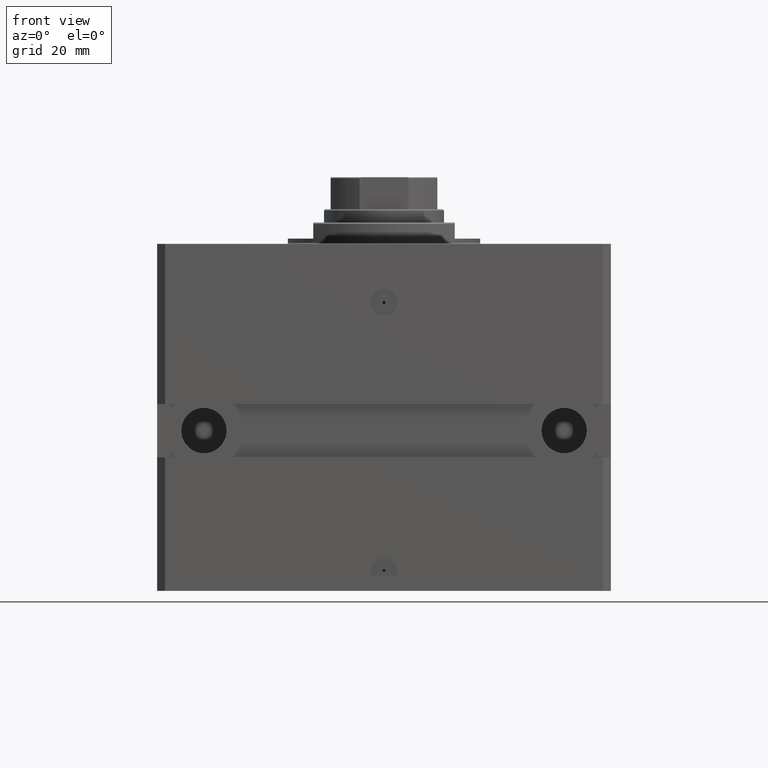
[diagram: clean part render]
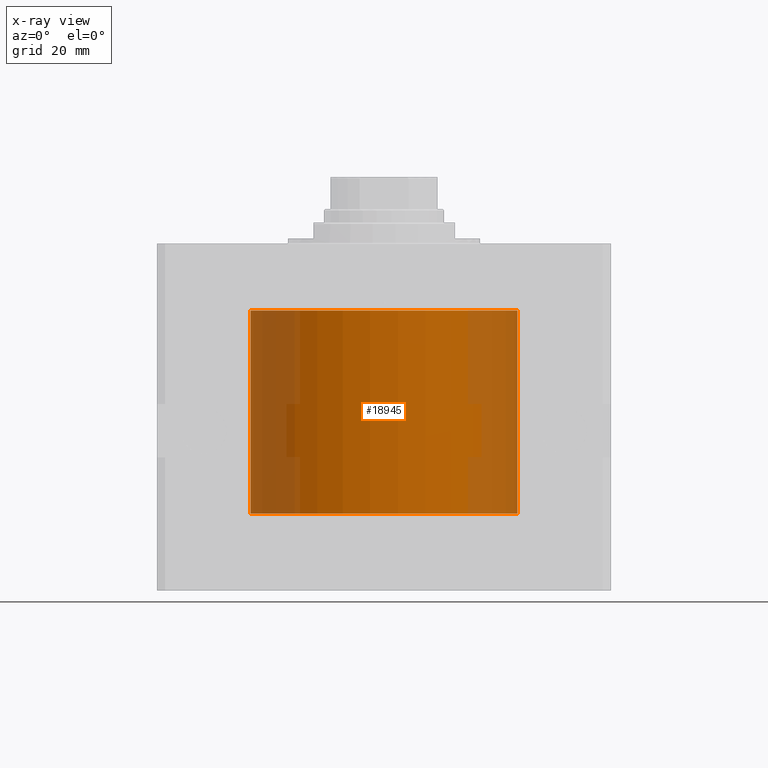
[diagram: x-ray — body ghosted, one internal face saturated and labeled with its STEP entity id]
A machine part, front view, then the same camera in x-ray: the body is ghosted and one INTERNAL B-rep face — a face not visible from any outside direction — is saturated and labeled: STEP entity #18945.
In plain terms, the highlighted cylindrical surface (partial cylindrical patch) has radius 50 mm, axis along (0, 0, 1).
Its self-contained STEP definition (entity closure, byte-faithful):
#1062 = LINE ( 'NONE', #42215, #24147 ) ;
#3898 = CIRCLE ( 'NONE', #27360, 50.00000000000000000 ) ;
#5566 = CARTESIAN_POINT ( 'NONE',  ( -50.00000000000000000, 6.123233995736764507E-15, -101.0999999999999943 ) ) ;
#6096 = VERTEX_POINT ( 'NONE', #11132 ) ;
#8206 = EDGE_CURVE ( 'NONE', #15691, #6096, #17080, .T. ) ;
#8247 = ORIENTED_EDGE ( 'NONE', *, *, #31020, .F. ) ;
#8670 = DIRECTION ( 'NONE',  ( -0.000000000000000000, -0.000000000000000000, 1.000000000000000000 ) ) ;
#10304 = ORIENTED_EDGE ( 'NONE', *, *, #36443, .T. ) ;
#11132 = CARTESIAN_POINT ( 'NONE',  ( -50.00000000000000000, 6.123233995736764507E-15, -24.99999999999999289 ) ) ;
#14686 = FACE_OUTER_BOUND ( 'NONE', #27583, .T. ) ;
#14825 = ORIENTED_EDGE ( 'NONE', *, *, #18593, .F. ) ;
#15691 = VERTEX_POINT ( 'NONE', #32630 ) ;
#15704 = DIRECTION ( 'NONE',  ( 0.000000000000000000, 0.000000000000000000, 1.000000000000000000 ) ) ;
#16068 = CIRCLE ( 'NONE', #27754, 50.00000000000000000 ) ;
#16184 = CARTESIAN_POINT ( 'NONE',  ( 0.000000000000000000, 0.000000000000000000, -101.0999999999999943 ) ) ;
#17080 = LINE ( 'NONE', #5566, #36970 ) ;
#17702 = ORIENTED_EDGE ( 'NONE', *, *, #8206, .T. ) ;
#18593 = EDGE_CURVE ( 'NONE', #15691, #27808, #16068, .T. ) ;
#18945 = ADVANCED_FACE ( 'NONE', ( #14686 ), #22742, .F. ) ;
#19162 = DIRECTION ( 'NONE',  ( 1.000000000000000000, 0.000000000000000000, 0.000000000000000000 ) ) ;
#19787 = CARTESIAN_POINT ( 'NONE',  ( 0.000000000000000000, 0.000000000000000000, -101.0999999999999943 ) ) ;
#20722 = AXIS2_PLACEMENT_3D ( 'NONE', #19787, #38639, #34496 ) ;
#22112 = DIRECTION ( 'NONE',  ( 0.000000000000000000, 0.000000000000000000, 1.000000000000000000 ) ) ;
#22742 = CYLINDRICAL_SURFACE ( 'NONE', #20722, 50.00000000000000000 ) ;
#24147 = VECTOR ( 'NONE', #8670, 1000.000000000000000 ) ;
#27360 = AXIS2_PLACEMENT_3D ( 'NONE', #44648, #22112, #19162 ) ;
#27583 = EDGE_LOOP ( 'NONE', ( #14825, #17702, #10304, #8247 ) ) ;
#27754 = AXIS2_PLACEMENT_3D ( 'NONE', #16184, #15704, #34312 ) ;
#27808 = VERTEX_POINT ( 'NONE', #46045 ) ;
#29636 = CARTESIAN_POINT ( 'NONE',  ( 50.00000000000000000, 0.000000000000000000, -24.99999999999999289 ) ) ;
#31020 = EDGE_CURVE ( 'NONE', #27808, #32126, #1062, .T. ) ;
#32126 = VERTEX_POINT ( 'NONE', #29636 ) ;
#32630 = CARTESIAN_POINT ( 'NONE',  ( -50.00000000000000000, 6.123233995736764507E-15, -101.0999999999999943 ) ) ;
#34312 = DIRECTION ( 'NONE',  ( 1.000000000000000000, 0.000000000000000000, 0.000000000000000000 ) ) ;
#34496 = DIRECTION ( 'NONE',  ( 1.000000000000000000, 0.000000000000000000, 0.000000000000000000 ) ) ;
#36443 = EDGE_CURVE ( 'NONE', #6096, #32126, #3898, .T. ) ;
#36970 = VECTOR ( 'NONE', #45993, 1000.000000000000000 ) ;
#38639 = DIRECTION ( 'NONE',  ( -0.000000000000000000, -0.000000000000000000, 1.000000000000000000 ) ) ;
#42215 = CARTESIAN_POINT ( 'NONE',  ( 50.00000000000000000, 0.000000000000000000, -101.0999999999999943 ) ) ;
#44648 = CARTESIAN_POINT ( 'NONE',  ( 0.000000000000000000, 0.000000000000000000, -24.99999999999999289 ) ) ;
#45993 = DIRECTION ( 'NONE',  ( -0.000000000000000000, -0.000000000000000000, 1.000000000000000000 ) ) ;
#46045 = CARTESIAN_POINT ( 'NONE',  ( 50.00000000000000000, 0.000000000000000000, -101.0999999999999943 ) ) ;